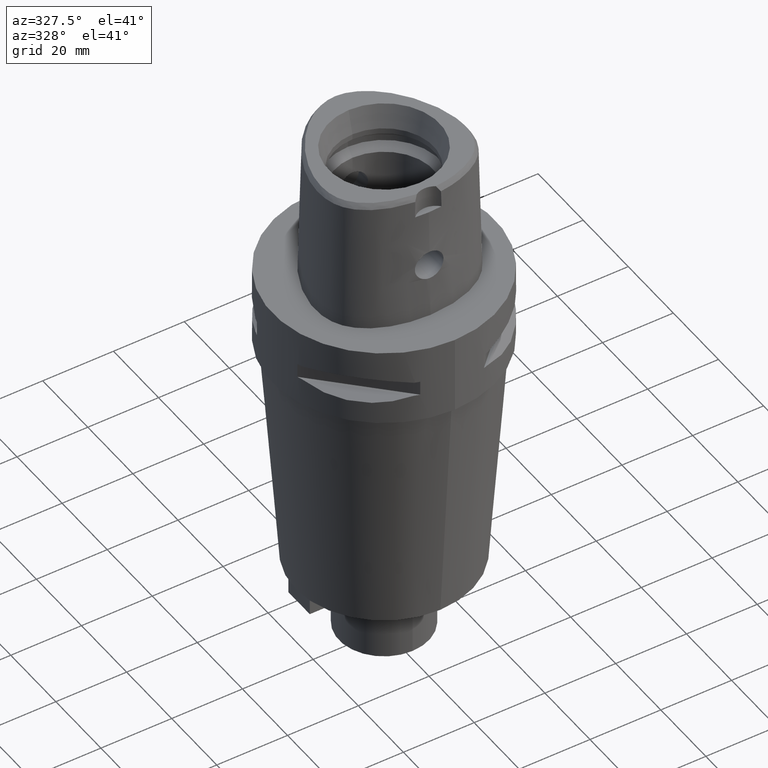
[diagram: clean part render]
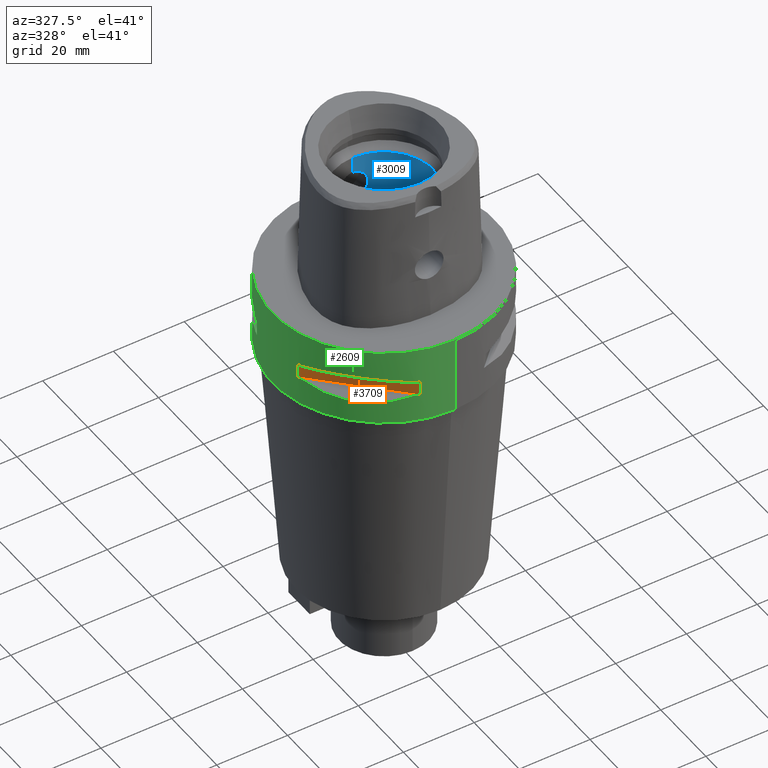
[diagram: same view with three faces highlighted in distinct colors, each labeled with its STEP entity id]
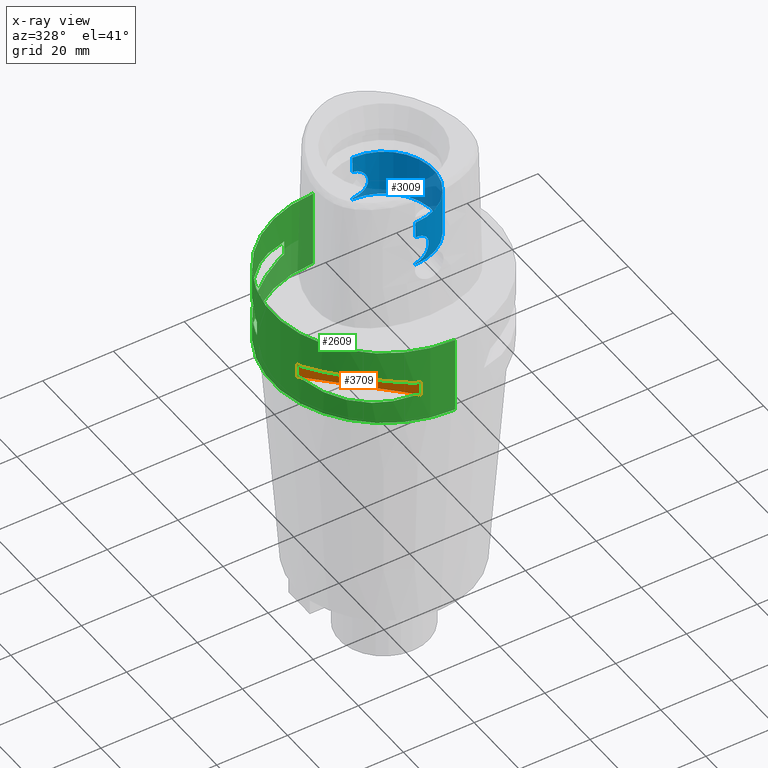
[diagram: x-ray of the same camera — body ghosted, the three highlighted faces saturated]
A machine part, auxiliary view with three faces highlighted in distinct colors.
The next image is the same camera in x-ray (body ghosted, the three faces saturated) — at least one of them is partly hidden behind the body in this view.
Their STEP definitions:

[orange] entity #3709 — the highlighted planar face has unit normal (0.7071, 0.7071, 0).
#440=DIRECTION('',(0.E0,0.E0,-1.E0));
#441=VECTOR('',#440,4.1E0);
#442=CARTESIAN_POINT('',(-3.019251670572E1,-8.981198972018E0,-9.95E0));
#443=LINE('',#442,#441);
#458=DIRECTION('',(0.E0,0.E0,1.E0));
#459=VECTOR('',#458,4.1E0);
#460=CARTESIAN_POINT('',(-8.981198972018E0,-3.019251670572E1,-1.405E1));
#461=LINE('',#460,#459);
#1625=DIRECTION('',(7.071067811865E-1,-7.071067811865E-1,0.E0));
#1626=VECTOR('',#1625,2.999733321480E1);
#1627=CARTESIAN_POINT('',(-3.019251670572E1,-8.981198972018E0,-9.95E0));
#1628=LINE('',#1627,#1626);
#1648=DIRECTION('',(7.071067811865E-1,-7.071067811865E-1,0.E0));
#1649=VECTOR('',#1648,2.999733321480E1);
#1650=CARTESIAN_POINT('',(-3.019251670572E1,-8.981198972018E0,-1.405E1));
#1651=LINE('',#1650,#1649);
#1711=CARTESIAN_POINT('',(-3.019251670572E1,-8.981198972020E0,-9.95E0));
#1712=VERTEX_POINT('',#1711);
#1713=CARTESIAN_POINT('',(-3.019251670572E1,-8.981198972018E0,-1.405E1));
#1714=VERTEX_POINT('',#1713);
#1718=CARTESIAN_POINT('',(-8.981198972020E0,-3.019251670572E1,-1.405E1));
#1719=VERTEX_POINT('',#1718);
#1720=CARTESIAN_POINT('',(-8.981198972018E0,-3.019251670572E1,-9.95E0));
#1721=VERTEX_POINT('',#1720);
#3697=CARTESIAN_POINT('',(-5.444722215136E0,-3.372899346260E1,-9.95E0));
#3698=DIRECTION('',(7.071067811865E-1,7.071067811865E-1,0.E0));
#3699=DIRECTION('',(0.E0,0.E0,-1.E0));
#3700=AXIS2_PLACEMENT_3D('',#3697,#3698,#3699);
#3701=PLANE('',#3700);
#3702=ORIENTED_EDGE('',*,*,#2603,.F.);
#3704=ORIENTED_EDGE('',*,*,#3703,.F.);
#3705=ORIENTED_EDGE('',*,*,#2595,.F.);
#3706=ORIENTED_EDGE('',*,*,#3690,.T.);
#3707=EDGE_LOOP('',(#3702,#3704,#3705,#3706));
#3708=FACE_OUTER_BOUND('',#3707,.F.);
#2595=EDGE_CURVE('',#1712,#1714,#443,.T.);
#2603=EDGE_CURVE('',#1719,#1721,#461,.T.);
#3690=EDGE_CURVE('',#1712,#1721,#1628,.T.);
#3703=EDGE_CURVE('',#1714,#1719,#1651,.T.);
#3709=ADVANCED_FACE('',(#3708),#3701,.F.);

[blue] entity #3009 — the highlighted cylindrical surface (partial cylindrical patch) has radius 14 mm, axis along (0, 0, -1).
#878=CARTESIAN_POINT('',(0.E0,0.E0,1.1E1));
#879=DIRECTION('',(0.E0,0.E0,-1.E0));
#880=DIRECTION('',(0.E0,1.E0,0.E0));
#881=AXIS2_PLACEMENT_3D('',#878,#879,#880);
#910=CARTESIAN_POINT('',(0.E0,1.4E1,1.145E1));
#911=CARTESIAN_POINT('',(3.549651718936E-1,1.4E1,1.145E1));
#912=CARTESIAN_POINT('',(1.042797089629E0,1.397338647428E1,1.154075500503E1));
#913=CARTESIAN_POINT('',(2.026106715515E0,1.386340734447E1,1.193885279298E1));
#914=CARTESIAN_POINT('',(2.888554503124E0,1.370625087655E1,1.259384709830E1));
#915=CARTESIAN_POINT('',(3.547232682471E0,1.354690259281E1,1.344810987419E1));
#916=CARTESIAN_POINT('',(3.961288560119E0,1.342876781251E1,1.445390490239E1));
#917=CARTESIAN_POINT('',(4.094552111593E0,1.338766158589E1,1.550312663361E1));
#918=CARTESIAN_POINT('',(3.960504331048E0,1.342898052380E1,1.654394793318E1));
#919=CARTESIAN_POINT('',(3.555598630922E0,1.354452875512E1,1.753449013033E1));
#920=CARTESIAN_POINT('',(2.909074612501E0,1.370175179262E1,1.838539835100E1));
#921=CARTESIAN_POINT('',(2.045679309849E0,1.386078650950E1,1.905154300997E1));
#922=CARTESIAN_POINT('',(1.047312010261E0,1.397334419497E1,1.945916717971E1));
#923=CARTESIAN_POINT('',(3.562137686674E-1,1.4E1,1.955E1));
#924=CARTESIAN_POINT('',(0.E0,1.4E1,1.955E1));
#929=DIRECTION('',(0.E0,0.E0,1.E0));
#930=VECTOR('',#929,4.65E0);
#931=CARTESIAN_POINT('',(0.E0,1.4E1,1.955E1));
#932=LINE('',#931,#930);
#936=CARTESIAN_POINT('',(0.E0,-1.4E1,1.955E1));
#937=CARTESIAN_POINT('',(3.549456415236E-1,-1.4E1,1.955E1));
#938=CARTESIAN_POINT('',(1.042755149182E0,-1.397339023816E1,1.945925827148E1));
#939=CARTESIAN_POINT('',(2.026125000254E0,-1.386340586572E1,1.906114175543E1));
#940=CARTESIAN_POINT('',(2.888592168341E0,-1.370624305776E1,1.840612105234E1));
#941=CARTESIAN_POINT('',(3.547274777177E0,-1.354689139205E1,1.755181374307E1));
#942=CARTESIAN_POINT('',(3.961300638158E0,-1.342876400422E1,1.654605542885E1));
#943=CARTESIAN_POINT('',(4.094550587952E0,-1.338766213502E1,1.549677546473E1));
#944=CARTESIAN_POINT('',(3.960498217435E0,-1.342898217491E1,1.445606566894E1));
#945=CARTESIAN_POINT('',(3.555625225109E0,-1.354452142212E1,1.346555660886E1));
#946=CARTESIAN_POINT('',(2.909097885891E0,-1.370174742737E1,1.261461966039E1));
#947=CARTESIAN_POINT('',(2.045678311919E0,-1.386078641754E1,1.194845716965E1));
#948=CARTESIAN_POINT('',(1.047344034062E0,-1.397334143508E1,1.154084248115E1));
#949=CARTESIAN_POINT('',(3.562269046693E-1,-1.4E1,1.145E1));
#950=CARTESIAN_POINT('',(0.E0,-1.4E1,1.145E1));
#955=DIRECTION('',(0.E0,0.E0,1.E0));
#956=VECTOR('',#955,4.5E-1);
#957=CARTESIAN_POINT('',(0.E0,1.4E1,1.1E1));
#958=LINE('',#957,#956);
#995=DIRECTION('',(0.E0,0.E0,1.E0));
#996=VECTOR('',#995,4.65E0);
#997=CARTESIAN_POINT('',(0.E0,-1.4E1,1.955E1));
#998=LINE('',#997,#996);
#1021=DIRECTION('',(0.E0,0.E0,1.E0));
#1022=VECTOR('',#1021,4.5E-1);
#1023=CARTESIAN_POINT('',(0.E0,-1.4E1,1.1E1));
#1024=LINE('',#1023,#1022);
#1137=CARTESIAN_POINT('',(0.E0,0.E0,2.42E1));
#1138=DIRECTION('',(0.E0,0.E0,1.E0));
#1139=DIRECTION('',(0.E0,-1.E0,0.E0));
#1140=AXIS2_PLACEMENT_3D('',#1137,#1138,#1139);
#1816=CARTESIAN_POINT('',(0.E0,1.4E1,1.1E1));
#1817=CARTESIAN_POINT('',(0.E0,-1.4E1,1.1E1));
#1818=VERTEX_POINT('',#1816);
#1819=VERTEX_POINT('',#1817);
#1820=VERTEX_POINT('',#910);
#1821=VERTEX_POINT('',#924);
#1822=CARTESIAN_POINT('',(0.E0,1.4E1,2.42E1));
#1823=VERTEX_POINT('',#1822);
#1824=CARTESIAN_POINT('',(0.E0,-1.4E1,2.42E1));
#1825=VERTEX_POINT('',#1824);
#1826=CARTESIAN_POINT('',(0.E0,-1.4E1,1.955E1));
#1827=VERTEX_POINT('',#1826);
#1828=VERTEX_POINT('',#950);
#2987=CARTESIAN_POINT('',(0.E0,0.E0,3.99E1));
#2988=DIRECTION('',(0.E0,0.E0,-1.E0));
#2989=DIRECTION('',(0.E0,-1.E0,0.E0));
#2990=AXIS2_PLACEMENT_3D('',#2987,#2988,#2989);
#2991=CYLINDRICAL_SURFACE('',#2990,1.4E1);
#2993=ORIENTED_EDGE('',*,*,#2992,.T.);
#2995=ORIENTED_EDGE('',*,*,#2994,.T.);
#2997=ORIENTED_EDGE('',*,*,#2996,.F.);
#2999=ORIENTED_EDGE('',*,*,#2998,.F.);
#3001=ORIENTED_EDGE('',*,*,#3000,.T.);
#3003=ORIENTED_EDGE('',*,*,#3002,.F.);
#3004=ORIENTED_EDGE('',*,*,#2976,.F.);
#3006=ORIENTED_EDGE('',*,*,#3005,.T.);
#3007=EDGE_LOOP('',(#2993,#2995,#2997,#2999,#3001,#3003,#3004,#3006));
#3008=FACE_OUTER_BOUND('',#3007,.F.);
#882=CIRCLE('',#881,1.4E1);
#925=B_SPLINE_CURVE_WITH_KNOTS('',3,(#910,#911,#912,#913,#914,#915,#916,#917,
#918,#919,#920,#921,#922,#923,#924),.UNSPECIFIED.,.F.,.F.,(4,1,1,1,1,1,1,1,1,1,
1,1,4),(0.E0,8.333333333333E-2,1.666666666667E-1,2.5E-1,3.333333333333E-1,
4.166666666667E-1,5.E-1,5.833333333333E-1,6.666666666667E-1,7.5E-1,
8.333333333333E-1,9.166666666667E-1,1.E0),.UNSPECIFIED.);
#951=B_SPLINE_CURVE_WITH_KNOTS('',3,(#936,#937,#938,#939,#940,#941,#942,#943,
#944,#945,#946,#947,#948,#949,#950),.UNSPECIFIED.,.F.,.F.,(4,1,1,1,1,1,1,1,1,1,
1,1,4),(0.E0,8.333333333333E-2,1.666666666667E-1,2.5E-1,3.333333333333E-1,
4.166666666667E-1,5.E-1,5.833333333333E-1,6.666666666667E-1,7.5E-1,
8.333333333333E-1,9.166666666667E-1,1.E0),.UNSPECIFIED.);
#1141=CIRCLE('',#1140,1.4E1);
#2976=EDGE_CURVE('',#1818,#1819,#882,.T.);
#2992=EDGE_CURVE('',#1820,#1821,#925,.T.);
#2994=EDGE_CURVE('',#1821,#1823,#932,.T.);
#2996=EDGE_CURVE('',#1825,#1823,#1141,.T.);
#2998=EDGE_CURVE('',#1827,#1825,#998,.T.);
#3000=EDGE_CURVE('',#1827,#1828,#951,.T.);
#3002=EDGE_CURVE('',#1819,#1828,#1024,.T.);
#3005=EDGE_CURVE('',#1818,#1820,#958,.T.);
#3009=ADVANCED_FACE('',(#3008),#2991,.F.);

[green] entity #2609 — the highlighted cylindrical surface (partial cylindrical patch) has radius 31.5 mm, axis along (0, 0, -1).
#286=CARTESIAN_POINT('',(0.E0,1.293227019900E-14,0.E0));
#287=DIRECTION('',(0.E0,0.E0,-1.E0));
#288=DIRECTION('',(0.E0,-1.E0,0.E0));
#289=AXIS2_PLACEMENT_3D('',#286,#287,#288);
#386=DIRECTION('',(0.E0,0.E0,-1.E0));
#387=VECTOR('',#386,2.2E1);
#388=CARTESIAN_POINT('',(0.E0,-3.15E1,0.E0));
#389=LINE('',#388,#387);
#393=CARTESIAN_POINT('',(-2.971690375018E1,1.044775724750E1,-9.949999999999E0));
#394=CARTESIAN_POINT('',(-2.888151197365E1,1.282388988809E1,-9.320995176198E0));
#395=CARTESIAN_POINT('',(-2.674739463903E1,1.711282138769E1,-8.441295977074E0));
#396=CARTESIAN_POINT('',(-2.244574140438E1,2.244574140438E1,-8.020283076294E0));
#397=CARTESIAN_POINT('',(-1.711282138769E1,2.674739463903E1,-8.441295977074E0));
#398=CARTESIAN_POINT('',(-1.282388988809E1,2.888151197365E1,-9.320995176198E0));
#399=CARTESIAN_POINT('',(-1.044775724750E1,2.971690375018E1,-9.949999999999E0));
#404=DIRECTION('',(0.E0,0.E0,-1.E0));
#405=VECTOR('',#404,4.1E0);
#406=CARTESIAN_POINT('',(-8.981198972018E0,3.019251670572E1,-9.95E0));
#407=LINE('',#406,#405);
#411=CARTESIAN_POINT('',(-1.044775724750E1,2.971690375018E1,-1.405E1));
#412=CARTESIAN_POINT('',(-1.282388988809E1,2.888151197365E1,-1.467900482380E1));
#413=CARTESIAN_POINT('',(-1.711282138769E1,2.674739463903E1,-1.555870402292E1));
#414=CARTESIAN_POINT('',(-2.244574140438E1,2.244574140438E1,-1.597971692370E1));
#415=CARTESIAN_POINT('',(-2.674739463903E1,1.711282138769E1,-1.555870402292E1));
#416=CARTESIAN_POINT('',(-2.888151197365E1,1.282388988809E1,-1.467900482380E1));
#417=CARTESIAN_POINT('',(-2.971690375018E1,1.044775724750E1,-1.405E1));
#422=DIRECTION('',(0.E0,0.E0,1.E0));
#423=VECTOR('',#422,4.1E0);
#424=CARTESIAN_POINT('',(-3.019251670572E1,8.981198972018E0,-1.405E1));
#425=LINE('',#424,#423);
#429=CARTESIAN_POINT('',(-1.044775724750E1,-2.971690375018E1,
-9.949999999999E0));
#430=CARTESIAN_POINT('',(-1.282388988809E1,-2.888151197365E1,
-9.320995176198E0));
#431=CARTESIAN_POINT('',(-1.711282138769E1,-2.674739463903E1,
-8.441295977074E0));
#432=CARTESIAN_POINT('',(-2.244574140438E1,-2.244574140438E1,
-8.020283076294E0));
#433=CARTESIAN_POINT('',(-2.674739463903E1,-1.711282138769E1,
-8.441295977074E0));
#434=CARTESIAN_POINT('',(-2.888151197365E1,-1.282388988809E1,
-9.320995176198E0));
#435=CARTESIAN_POINT('',(-2.971690375018E1,-1.044775724750E1,
-9.949999999999E0));
#440=DIRECTION('',(0.E0,0.E0,-1.E0));
#441=VECTOR('',#440,4.1E0);
#442=CARTESIAN_POINT('',(-3.019251670572E1,-8.981198972018E0,-9.95E0));
#443=LINE('',#442,#441);
#447=CARTESIAN_POINT('',(-2.971690375018E1,-1.044775724750E1,-1.405E1));
#448=CARTESIAN_POINT('',(-2.888151197365E1,-1.282388988809E1,
-1.467900482380E1));
#449=CARTESIAN_POINT('',(-2.674739463903E1,-1.711282138769E1,
-1.555870402292E1));
#450=CARTESIAN_POINT('',(-2.244574140438E1,-2.244574140438E1,
-1.597971692370E1));
#451=CARTESIAN_POINT('',(-1.711282138769E1,-2.674739463903E1,
-1.555870402292E1));
#452=CARTESIAN_POINT('',(-1.282388988809E1,-2.888151197365E1,
-1.467900482380E1));
#453=CARTESIAN_POINT('',(-1.044775724750E1,-2.971690375018E1,-1.405E1));
#458=DIRECTION('',(0.E0,0.E0,1.E0));
#459=VECTOR('',#458,4.1E0);
#460=CARTESIAN_POINT('',(-8.981198972018E0,-3.019251670572E1,-1.405E1));
#461=LINE('',#460,#459);
#465=DIRECTION('',(0.E0,0.E0,-1.E0));
#466=VECTOR('',#465,2.2E1);
#467=CARTESIAN_POINT('',(0.E0,3.15E1,0.E0));
#468=LINE('',#467,#466);
#552=CARTESIAN_POINT('',(0.E0,1.293227019900E-14,-2.2E1));
#553=DIRECTION('',(0.E0,0.E0,1.E0));
#554=DIRECTION('',(0.E0,1.E0,0.E0));
#555=AXIS2_PLACEMENT_3D('',#552,#553,#554);
#1542=CARTESIAN_POINT('',(0.E0,1.293227019900E-14,-9.95E0));
#1543=DIRECTION('',(0.E0,0.E0,1.E0));
#1544=DIRECTION('',(-9.433937698469E-1,3.316748332541E-1,0.E0));
#1545=AXIS2_PLACEMENT_3D('',#1542,#1543,#1544);
#1550=CARTESIAN_POINT('',(0.E0,1.293227019900E-14,-9.95E0));
#1551=DIRECTION('',(0.E0,0.E0,1.E0));
#1552=DIRECTION('',(-2.851174276832E-1,9.584925938323E-1,0.E0));
#1553=AXIS2_PLACEMENT_3D('',#1550,#1551,#1552);
#1572=CARTESIAN_POINT('',(0.E0,1.293227019900E-14,-1.405E1));
#1573=DIRECTION('',(0.E0,0.E0,-1.E0));
#1574=DIRECTION('',(-9.584925938323E-1,2.851174276832E-1,0.E0));
#1575=AXIS2_PLACEMENT_3D('',#1572,#1573,#1574);
#1580=CARTESIAN_POINT('',(0.E0,1.293227019900E-14,-1.405E1));
#1581=DIRECTION('',(0.E0,0.E0,-1.E0));
#1582=DIRECTION('',(-3.316748332541E-1,9.433937698469E-1,0.E0));
#1583=AXIS2_PLACEMENT_3D('',#1580,#1581,#1582);
#1602=CARTESIAN_POINT('',(0.E0,1.293227019900E-14,-9.95E0));
#1603=DIRECTION('',(0.E0,0.E0,1.E0));
#1604=DIRECTION('',(-3.316748332541E-1,-9.433937698469E-1,0.E0));
#1605=AXIS2_PLACEMENT_3D('',#1602,#1603,#1604);
#1610=CARTESIAN_POINT('',(0.E0,1.293227019900E-14,-9.95E0));
#1611=DIRECTION('',(0.E0,0.E0,1.E0));
#1612=DIRECTION('',(-9.584925938323E-1,-2.851174276832E-1,0.E0));
#1613=AXIS2_PLACEMENT_3D('',#1610,#1611,#1612);
#1632=CARTESIAN_POINT('',(0.E0,1.293227019900E-14,-1.405E1));
#1633=DIRECTION('',(0.E0,0.E0,-1.E0));
#1634=DIRECTION('',(-2.851174276832E-1,-9.584925938323E-1,0.E0));
#1635=AXIS2_PLACEMENT_3D('',#1632,#1633,#1634);
#1640=CARTESIAN_POINT('',(0.E0,1.293227019900E-14,-1.405E1));
#1641=DIRECTION('',(0.E0,0.E0,-1.E0));
#1642=DIRECTION('',(-9.433937698469E-1,-3.316748332541E-1,0.E0));
#1643=AXIS2_PLACEMENT_3D('',#1640,#1641,#1642);
#1688=CARTESIAN_POINT('',(0.E0,-3.15E1,0.E0));
#1689=CARTESIAN_POINT('',(0.E0,3.15E1,0.E0));
#1690=VERTEX_POINT('',#1688);
#1691=VERTEX_POINT('',#1689);
#1692=CARTESIAN_POINT('',(0.E0,3.15E1,-2.2E1));
#1693=VERTEX_POINT('',#1692);
#1694=CARTESIAN_POINT('',(0.E0,-3.15E1,-2.2E1));
#1695=VERTEX_POINT('',#1694);
#1696=VERTEX_POINT('',#393);
#1697=VERTEX_POINT('',#399);
#1698=CARTESIAN_POINT('',(-8.981198972020E0,3.019251670572E1,-9.95E0));
#1699=VERTEX_POINT('',#1698);
#1700=CARTESIAN_POINT('',(-8.981198972018E0,3.019251670572E1,-1.405E1));
#1701=VERTEX_POINT('',#1700);
#1702=CARTESIAN_POINT('',(-1.044775724750E1,2.971690375018E1,-1.405E1));
#1703=VERTEX_POINT('',#1702);
#1704=VERTEX_POINT('',#417);
#1705=CARTESIAN_POINT('',(-3.019251670572E1,8.981198972020E0,-1.405E1));
#1706=VERTEX_POINT('',#1705);
#1707=CARTESIAN_POINT('',(-3.019251670572E1,8.981198972018E0,-9.95E0));
#1708=VERTEX_POINT('',#1707);
#1709=VERTEX_POINT('',#429);
#1710=VERTEX_POINT('',#435);
#1711=CARTESIAN_POINT('',(-3.019251670572E1,-8.981198972020E0,-9.95E0));
#1712=VERTEX_POINT('',#1711);
#1713=CARTESIAN_POINT('',(-3.019251670572E1,-8.981198972018E0,-1.405E1));
#1714=VERTEX_POINT('',#1713);
#1715=CARTESIAN_POINT('',(-2.971690375018E1,-1.044775724750E1,-1.405E1));
#1716=VERTEX_POINT('',#1715);
#1717=VERTEX_POINT('',#453);
#1718=CARTESIAN_POINT('',(-8.981198972020E0,-3.019251670572E1,-1.405E1));
#1719=VERTEX_POINT('',#1718);
#1720=CARTESIAN_POINT('',(-8.981198972018E0,-3.019251670572E1,-9.95E0));
#1721=VERTEX_POINT('',#1720);
#2559=CARTESIAN_POINT('',(0.E0,1.293227019900E-14,5.6E0));
#2560=DIRECTION('',(0.E0,0.E0,-1.E0));
#2561=DIRECTION('',(0.E0,-1.E0,0.E0));
#2562=AXIS2_PLACEMENT_3D('',#2559,#2560,#2561);
#2563=CYLINDRICAL_SURFACE('',#2562,3.15E1);
#2565=ORIENTED_EDGE('',*,*,#2564,.F.);
#2566=ORIENTED_EDGE('',*,*,#2547,.F.);
#2568=ORIENTED_EDGE('',*,*,#2567,.T.);
#2570=ORIENTED_EDGE('',*,*,#2569,.F.);
#2571=EDGE_LOOP('',(#2565,#2566,#2568,#2570));
#2572=FACE_OUTER_BOUND('',#2571,.F.);
#2574=ORIENTED_EDGE('',*,*,#2573,.T.);
#2576=ORIENTED_EDGE('',*,*,#2575,.F.);
#2578=ORIENTED_EDGE('',*,*,#2577,.T.);
#2580=ORIENTED_EDGE('',*,*,#2579,.F.);
#2582=ORIENTED_EDGE('',*,*,#2581,.T.);
#2584=ORIENTED_EDGE('',*,*,#2583,.F.);
#2586=ORIENTED_EDGE('',*,*,#2585,.T.);
#2588=ORIENTED_EDGE('',*,*,#2587,.F.);
#2589=EDGE_LOOP('',(#2574,#2576,#2578,#2580,#2582,#2584,#2586,#2588));
#2590=FACE_BOUND('',#2589,.F.);
#2592=ORIENTED_EDGE('',*,*,#2591,.T.);
#2594=ORIENTED_EDGE('',*,*,#2593,.F.);
#2596=ORIENTED_EDGE('',*,*,#2595,.T.);
#2598=ORIENTED_EDGE('',*,*,#2597,.F.);
#2600=ORIENTED_EDGE('',*,*,#2599,.T.);
#2602=ORIENTED_EDGE('',*,*,#2601,.F.);
#2604=ORIENTED_EDGE('',*,*,#2603,.T.);
#2606=ORIENTED_EDGE('',*,*,#2605,.F.);
#2607=EDGE_LOOP('',(#2592,#2594,#2596,#2598,#2600,#2602,#2604,#2606));
#2608=FACE_BOUND('',#2607,.F.);
#290=CIRCLE('',#289,3.15E1);
#400=B_SPLINE_CURVE_WITH_KNOTS('',3,(#393,#394,#395,#396,#397,#398,#399),
.UNSPECIFIED.,.F.,.F.,(4,1,1,1,4),(0.E0,2.5E-1,5.E-1,7.5E-1,1.E0),
.UNSPECIFIED.);
#418=B_SPLINE_CURVE_WITH_KNOTS('',3,(#411,#412,#413,#414,#415,#416,#417),
.UNSPECIFIED.,.F.,.F.,(4,1,1,1,4),(0.E0,2.5E-1,5.E-1,7.5E-1,1.E0),
.UNSPECIFIED.);
#436=B_SPLINE_CURVE_WITH_KNOTS('',3,(#429,#430,#431,#432,#433,#434,#435),
.UNSPECIFIED.,.F.,.F.,(4,1,1,1,4),(0.E0,2.5E-1,5.E-1,7.5E-1,1.E0),
.UNSPECIFIED.);
#454=B_SPLINE_CURVE_WITH_KNOTS('',3,(#447,#448,#449,#450,#451,#452,#453),
.UNSPECIFIED.,.F.,.F.,(4,1,1,1,4),(0.E0,2.5E-1,5.E-1,7.5E-1,1.E0),
.UNSPECIFIED.);
#556=CIRCLE('',#555,3.15E1);
#1546=CIRCLE('',#1545,3.15E1);
#1554=CIRCLE('',#1553,3.15E1);
#1576=CIRCLE('',#1575,3.15E1);
#1584=CIRCLE('',#1583,3.15E1);
#1606=CIRCLE('',#1605,3.15E1);
#1614=CIRCLE('',#1613,3.15E1);
#1636=CIRCLE('',#1635,3.15E1);
#1644=CIRCLE('',#1643,3.15E1);
#2547=EDGE_CURVE('',#1690,#1691,#290,.T.);
#2564=EDGE_CURVE('',#1691,#1693,#468,.T.);
#2567=EDGE_CURVE('',#1690,#1695,#389,.T.);
#2569=EDGE_CURVE('',#1693,#1695,#556,.T.);
#2573=EDGE_CURVE('',#1696,#1697,#400,.T.);
#2575=EDGE_CURVE('',#1699,#1697,#1554,.T.);
#2577=EDGE_CURVE('',#1699,#1701,#407,.T.);
#2579=EDGE_CURVE('',#1703,#1701,#1584,.T.);
#2581=EDGE_CURVE('',#1703,#1704,#418,.T.);
#2583=EDGE_CURVE('',#1706,#1704,#1576,.T.);
#2585=EDGE_CURVE('',#1706,#1708,#425,.T.);
#2587=EDGE_CURVE('',#1696,#1708,#1546,.T.);
#2591=EDGE_CURVE('',#1709,#1710,#436,.T.);
#2593=EDGE_CURVE('',#1712,#1710,#1614,.T.);
#2595=EDGE_CURVE('',#1712,#1714,#443,.T.);
#2597=EDGE_CURVE('',#1716,#1714,#1644,.T.);
#2599=EDGE_CURVE('',#1716,#1717,#454,.T.);
#2601=EDGE_CURVE('',#1719,#1717,#1636,.T.);
#2603=EDGE_CURVE('',#1719,#1721,#461,.T.);
#2605=EDGE_CURVE('',#1709,#1721,#1606,.T.);
#2609=ADVANCED_FACE('',(#2572,#2590,#2608),#2563,.T.);